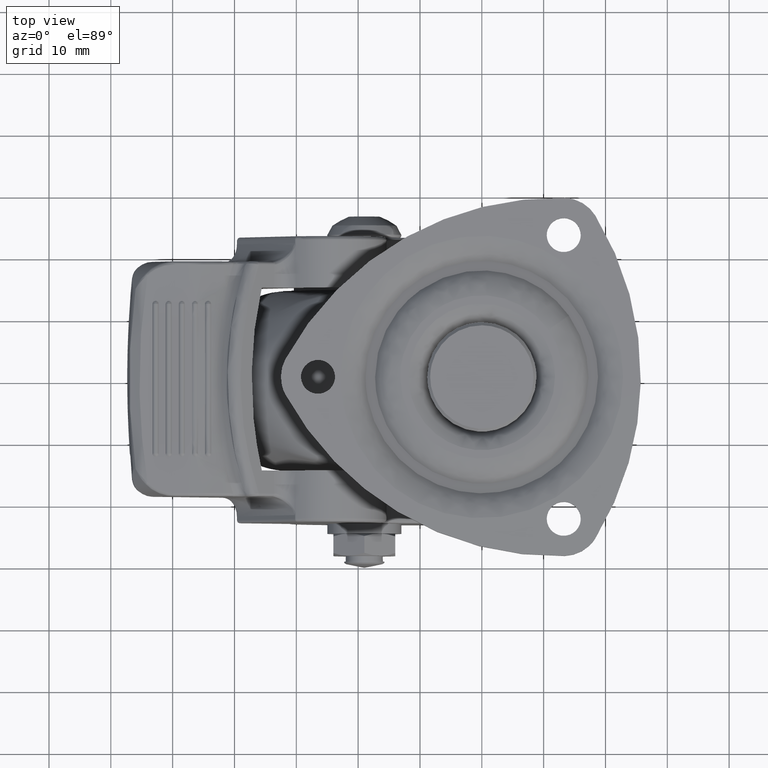
[diagram: clean part render]
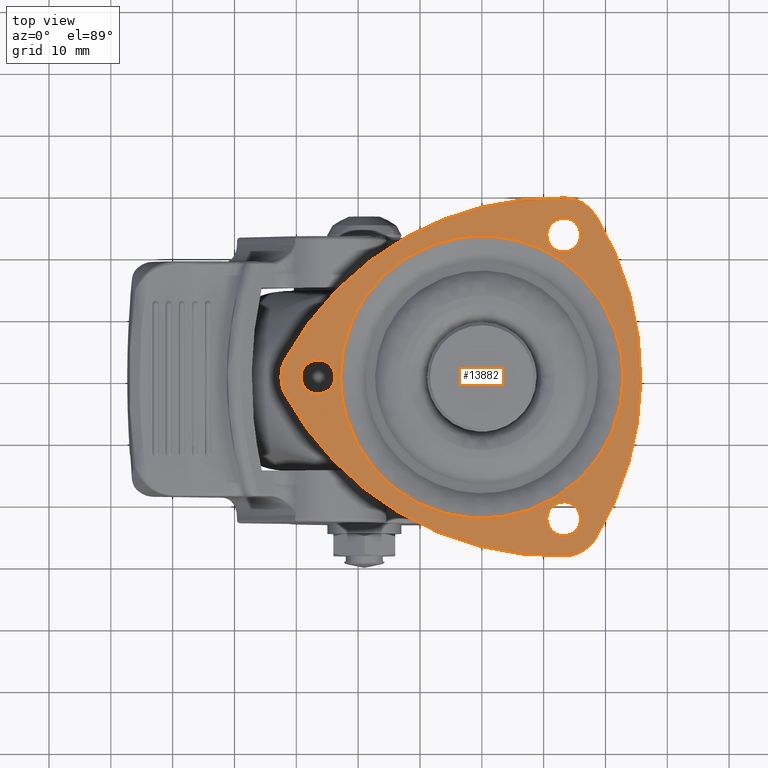
[diagram: same view with one face highlighted and labeled with its STEP entity id]
A machine part, top view. The second image highlights one B-rep face of the part: STEP entity #13882.
In plain terms, the highlighted face is a freeform B-spline surface patch.
Its self-contained STEP definition (entity closure, byte-faithful):
#12094=CARTESIAN_POINT('',(-26.824594145409119,-2.730776197487836,1.277743E-016));
#12095=VERTEX_POINT('',#12094);
#12096=CARTESIAN_POINT('',(-23.750000000000000,0.0,0.0));
#12097=VERTEX_POINT('',#12096);
#12098=CARTESIAN_POINT('',(-26.824594145409126,-2.730776197487836,1.277743E-016));
#12099=CARTESIAN_POINT('',(-26.662866329146873,-2.750000000000000,0.0));
#12100=CARTESIAN_POINT('',(-26.500000000000000,-2.750000000000000,0.0));
#12101=CARTESIAN_POINT('',(-23.750000000000011,-2.750000000000000,0.0));
#12102=CARTESIAN_POINT('',(-23.750000000000000,0.0,0.0));
#12110=(BOUNDED_CURVE()B_SPLINE_CURVE(2,(#12098,#12099,#12100,#12101,#12102),.UNSPECIFIED.,.F.,.U.)B_SPLINE_CURVE_WITH_KNOTS((3,2,3),(0.229562473502891,0.250000000000000,0.500000000000000),.UNSPECIFIED.)CURVE()GEOMETRIC_REPRESENTATION_ITEM()RATIONAL_B_SPLINE_CURVE((0.956026754162888,0.976055948318706,1.0,0.707106781186548,1.0))REPRESENTATION_ITEM(''));
#12111=EDGE_CURVE('',#12095,#12097,#12110,.T.);
#12113=CARTESIAN_POINT('',(-26.332119423274470,2.744870873456494,-9.042073E-014));
#12114=VERTEX_POINT('',#12113);
#12115=CARTESIAN_POINT('',(-23.750000000000000,0.0,0.0));
#12116=CARTESIAN_POINT('',(-23.749999999999996,2.586944428849873,0.0));
#12117=CARTESIAN_POINT('',(-26.332119423274470,2.744870873456494,-9.042073E-014));
#12125=(BOUNDED_CURVE()B_SPLINE_CURVE(2,(#12115,#12116,#12117),.UNSPECIFIED.,.F.,.U.)B_SPLINE_CURVE_WITH_KNOTS((3,3),(0.500000000000000,0.739333144980187),.UNSPECIFIED.)CURVE()GEOMETRIC_REPRESENTATION_ITEM()RATIONAL_B_SPLINE_CURVE((1.0,0.719603779192026,0.976072433316302))REPRESENTATION_ITEM(''));
#12126=EDGE_CURVE('',#12097,#12114,#12125,.T.);
#12193=CARTESIAN_POINT('',(-29.250000000000000,0.0,0.0));
#12194=VERTEX_POINT('',#12193);
#12195=CARTESIAN_POINT('',(-29.250000000000000,0.0,0.0));
#12196=CARTESIAN_POINT('',(-29.250000000000004,-2.442479946180645,0.0));
#12197=CARTESIAN_POINT('',(-26.824594145409126,-2.730776197487836,1.277743E-016));
#12205=(BOUNDED_CURVE()B_SPLINE_CURVE(2,(#12195,#12196,#12197),.UNSPECIFIED.,.F.,.U.)B_SPLINE_CURVE_WITH_KNOTS((3,3),(0.0,0.229562473502891),.UNSPECIFIED.)CURVE()GEOMETRIC_REPRESENTATION_ITEM()RATIONAL_B_SPLINE_CURVE((1.0,0.731050832867842,0.956026754162888))REPRESENTATION_ITEM(''));
#12206=EDGE_CURVE('',#12194,#12095,#12205,.T.);
#12240=CARTESIAN_POINT('',(-26.332119423274467,2.744870873456495,-9.042073E-014));
#12241=CARTESIAN_POINT('',(-26.415981358501895,2.750000000000000,0.0));
#12242=CARTESIAN_POINT('',(-26.500000000000000,2.750000000000000,0.0));
#12243=CARTESIAN_POINT('',(-29.250000000000004,2.750000000000000,0.0));
#12244=CARTESIAN_POINT('',(-29.250000000000000,0.0,0.0));
#12252=(BOUNDED_CURVE()B_SPLINE_CURVE(2,(#12240,#12241,#12242,#12243,#12244),.UNSPECIFIED.,.F.,.U.)B_SPLINE_CURVE_WITH_KNOTS((3,2,3),(0.739333144980186,0.750000000000000,1.0),.UNSPECIFIED.)CURVE()GEOMETRIC_REPRESENTATION_ITEM()RATIONAL_B_SPLINE_CURVE((0.976072433316302,0.987503001994521,1.0,0.707106781186548,1.0))REPRESENTATION_ITEM(''));
#12253=EDGE_CURVE('',#12114,#12194,#12252,.T.);
#12280=CARTESIAN_POINT('',(12.925405854590879,20.218897802512171,1.277743E-016));
#12281=VERTEX_POINT('',#12280);
#12282=CARTESIAN_POINT('',(16.0,22.949674000000002,0.0));
#12283=VERTEX_POINT('',#12282);
#12284=CARTESIAN_POINT('',(12.925405854590881,20.218897802512171,1.277743E-016));
#12285=CARTESIAN_POINT('',(13.087133670853115,20.199673999999998,0.0));
#12286=CARTESIAN_POINT('',(13.250000000000000,20.199674000000002,0.0));
#12287=CARTESIAN_POINT('',(15.999999999999998,20.199674000000009,0.0));
#12288=CARTESIAN_POINT('',(16.0,22.949674000000002,0.0));
#12296=(BOUNDED_CURVE()B_SPLINE_CURVE(2,(#12284,#12285,#12286,#12287,#12288),.UNSPECIFIED.,.F.,.U.)B_SPLINE_CURVE_WITH_KNOTS((3,2,3),(0.229562473502891,0.250000000000000,0.500000000000000),.UNSPECIFIED.)CURVE()GEOMETRIC_REPRESENTATION_ITEM()RATIONAL_B_SPLINE_CURVE((0.956026754162888,0.976055948318706,1.0,0.707106781186548,1.0))REPRESENTATION_ITEM(''));
#12297=EDGE_CURVE('',#12281,#12283,#12296,.T.);
#12299=CARTESIAN_POINT('',(13.417880576725530,25.694544873456490,-8.988296E-014));
#12300=VERTEX_POINT('',#12299);
#12301=CARTESIAN_POINT('',(16.0,22.949674000000002,0.0));
#12302=CARTESIAN_POINT('',(16.000000000000004,25.536618428849859,0.0));
#12303=CARTESIAN_POINT('',(13.417880576725532,25.694544873456490,-8.988296E-014));
#12311=(BOUNDED_CURVE()B_SPLINE_CURVE(2,(#12301,#12302,#12303),.UNSPECIFIED.,.F.,.U.)B_SPLINE_CURVE_WITH_KNOTS((3,3),(0.500000000000000,0.739333144980186),.UNSPECIFIED.)CURVE()GEOMETRIC_REPRESENTATION_ITEM()RATIONAL_B_SPLINE_CURVE((1.0,0.719603779192026,0.976072433316302))REPRESENTATION_ITEM(''));
#12312=EDGE_CURVE('',#12283,#12300,#12311,.T.);
#12379=CARTESIAN_POINT('',(10.500000000000000,22.949674000000002,0.0));
#12380=VERTEX_POINT('',#12379);
#12381=CARTESIAN_POINT('',(10.500000000000000,22.949674000000002,0.0));
#12382=CARTESIAN_POINT('',(10.499999999999998,20.507194053819358,0.0));
#12383=CARTESIAN_POINT('',(12.925405854590881,20.218897802512171,1.277743E-016));
#12391=(BOUNDED_CURVE()B_SPLINE_CURVE(2,(#12381,#12382,#12383),.UNSPECIFIED.,.F.,.U.)B_SPLINE_CURVE_WITH_KNOTS((3,3),(0.0,0.229562473502891),.UNSPECIFIED.)CURVE()GEOMETRIC_REPRESENTATION_ITEM()RATIONAL_B_SPLINE_CURVE((1.0,0.731050832867842,0.956026754162888))REPRESENTATION_ITEM(''));
#12392=EDGE_CURVE('',#12380,#12281,#12391,.T.);
#12426=CARTESIAN_POINT('',(13.417880576725535,25.694544873456497,-8.988296E-014));
#12427=CARTESIAN_POINT('',(13.334018641498107,25.699674000000002,0.0));
#12428=CARTESIAN_POINT('',(13.250000000000000,25.699674000000002,0.0));
#12429=CARTESIAN_POINT('',(10.499999999999998,25.699673999999991,0.0));
#12430=CARTESIAN_POINT('',(10.500000000000000,22.949674000000002,0.0));
#12438=(BOUNDED_CURVE()B_SPLINE_CURVE(2,(#12426,#12427,#12428,#12429,#12430),.UNSPECIFIED.,.F.,.U.)B_SPLINE_CURVE_WITH_KNOTS((3,2,3),(0.739333144980186,0.750000000000000,1.0),.UNSPECIFIED.)CURVE()GEOMETRIC_REPRESENTATION_ITEM()RATIONAL_B_SPLINE_CURVE((0.976072433316301,0.987503001994521,1.0,0.707106781186548,1.0))REPRESENTATION_ITEM(''));
#12439=EDGE_CURVE('',#12300,#12380,#12438,.T.);
#12466=CARTESIAN_POINT('',(12.925405854590879,-25.680449197487938,1.277743E-016));
#12467=VERTEX_POINT('',#12466);
#12468=CARTESIAN_POINT('',(16.0,-22.949673000000100,0.0));
#12469=VERTEX_POINT('',#12468);
#12470=CARTESIAN_POINT('',(12.925405854590883,-25.680449197487935,1.277743E-016));
#12471=CARTESIAN_POINT('',(13.087133670853127,-25.699673000000097,0.0));
#12472=CARTESIAN_POINT('',(13.250000000000000,-25.699673000000100,0.0));
#12473=CARTESIAN_POINT('',(15.999999999999998,-25.699673000000107,0.0));
#12474=CARTESIAN_POINT('',(16.0,-22.949673000000100,0.0));
#12482=(BOUNDED_CURVE()B_SPLINE_CURVE(2,(#12470,#12471,#12472,#12473,#12474),.UNSPECIFIED.,.F.,.U.)B_SPLINE_CURVE_WITH_KNOTS((3,2,3),(0.229562473502891,0.250000000000000,0.500000000000000),.UNSPECIFIED.)CURVE()GEOMETRIC_REPRESENTATION_ITEM()RATIONAL_B_SPLINE_CURVE((0.956026754162888,0.976055948318706,1.0,0.707106781186548,1.0))REPRESENTATION_ITEM(''));
#12483=EDGE_CURVE('',#12467,#12469,#12482,.T.);
#12485=CARTESIAN_POINT('',(13.417880576725530,-20.204802126543608,-8.988296E-014));
#12486=VERTEX_POINT('',#12485);
#12487=CARTESIAN_POINT('',(16.0,-22.949673000000100,0.0));
#12488=CARTESIAN_POINT('',(16.000000000000004,-20.362728571150242,0.0));
#12489=CARTESIAN_POINT('',(13.417880576725532,-20.204802126543612,-8.988296E-014));
#12497=(BOUNDED_CURVE()B_SPLINE_CURVE(2,(#12487,#12488,#12489),.UNSPECIFIED.,.F.,.U.)B_SPLINE_CURVE_WITH_KNOTS((3,3),(0.500000000000000,0.739333144980186),.UNSPECIFIED.)CURVE()GEOMETRIC_REPRESENTATION_ITEM()RATIONAL_B_SPLINE_CURVE((1.0,0.719603779192026,0.976072433316302))REPRESENTATION_ITEM(''));
#12498=EDGE_CURVE('',#12469,#12486,#12497,.T.);
#12565=CARTESIAN_POINT('',(10.500000000000000,-22.949673000000100,0.0));
#12566=VERTEX_POINT('',#12565);
#12567=CARTESIAN_POINT('',(10.500000000000000,-22.949673000000100,0.0));
#12568=CARTESIAN_POINT('',(10.499999999999998,-25.392152946180744,0.0));
#12569=CARTESIAN_POINT('',(12.925405854590881,-25.680449197487942,1.277743E-016));
#12577=(BOUNDED_CURVE()B_SPLINE_CURVE(2,(#12567,#12568,#12569),.UNSPECIFIED.,.F.,.U.)B_SPLINE_CURVE_WITH_KNOTS((3,3),(0.0,0.229562473502891),.UNSPECIFIED.)CURVE()GEOMETRIC_REPRESENTATION_ITEM()RATIONAL_B_SPLINE_CURVE((1.0,0.731050832867842,0.956026754162888))REPRESENTATION_ITEM(''));
#12578=EDGE_CURVE('',#12566,#12467,#12577,.T.);
#12612=CARTESIAN_POINT('',(13.417880576725532,-20.204802126543612,-8.988296E-014));
#12613=CARTESIAN_POINT('',(13.334018641498107,-20.199673000000107,0.0));
#12614=CARTESIAN_POINT('',(13.250000000000000,-20.199673000000100,0.0));
#12615=CARTESIAN_POINT('',(10.499999999999998,-20.199673000000111,0.0));
#12616=CARTESIAN_POINT('',(10.500000000000000,-22.949673000000100,0.0));
#12624=(BOUNDED_CURVE()B_SPLINE_CURVE(2,(#12612,#12613,#12614,#12615,#12616),.UNSPECIFIED.,.F.,.U.)B_SPLINE_CURVE_WITH_KNOTS((3,2,3),(0.739333144980186,0.750000000000000,1.0),.UNSPECIFIED.)CURVE()GEOMETRIC_REPRESENTATION_ITEM()RATIONAL_B_SPLINE_CURVE((0.976072433316302,0.987503001994521,1.0,0.707106781186548,1.0))REPRESENTATION_ITEM(''));
#12625=EDGE_CURVE('',#12486,#12566,#12624,.T.);
#12864=CARTESIAN_POINT('',(-18.653898075415331,13.197922715742010,-1.032646E-015));
#12865=VERTEX_POINT('',#12864);
#12879=CARTESIAN_POINT('',(-22.850669080457550,0.0,0.0));
#12880=VERTEX_POINT('',#12879);
#12881=CARTESIAN_POINT('',(-22.850669080457550,0.0,0.0));
#12882=CARTESIAN_POINT('',(-22.850669080457553,7.266221170201773,0.0));
#12883=CARTESIAN_POINT('',(-18.653898075415334,13.197922715742020,-1.032646E-015));
#12891=(BOUNDED_CURVE()B_SPLINE_CURVE(2,(#12881,#12882,#12883),.UNSPECIFIED.,.F.,.U.)B_SPLINE_CURVE_WITH_KNOTS((3,3),(0.0,0.099340826588436),.UNSPECIFIED.)CURVE()GEOMETRIC_REPRESENTATION_ITEM()RATIONAL_B_SPLINE_CURVE((1.0,0.883614982163696,0.859724235322339))REPRESENTATION_ITEM(''));
#12892=EDGE_CURVE('',#12880,#12865,#12891,.T.);
#12894=CARTESIAN_POINT('',(22.850669080457550,0.0,0.0));
#12895=VERTEX_POINT('',#12894);
#12896=CARTESIAN_POINT('',(22.850669080457550,0.0,0.0));
#12897=CARTESIAN_POINT('',(22.850669080457546,-22.850669080457546,0.0));
#12898=CARTESIAN_POINT('',(0.0,-22.850669080457550,0.0));
#12899=CARTESIAN_POINT('',(-22.850669080457546,-22.850669080457546,0.0));
#12900=CARTESIAN_POINT('',(-22.850669080457550,0.0,0.0));
#12908=(BOUNDED_CURVE()B_SPLINE_CURVE(2,(#12896,#12897,#12898,#12899,#12900),.UNSPECIFIED.,.F.,.U.)B_SPLINE_CURVE_WITH_KNOTS((3,2,3),(0.500000000000000,0.750000000000000,1.0),.UNSPECIFIED.)CURVE()GEOMETRIC_REPRESENTATION_ITEM()RATIONAL_B_SPLINE_CURVE((1.0,0.707106781186547,1.0,0.707106781186547,1.0))REPRESENTATION_ITEM(''));
#12909=EDGE_CURVE('',#12895,#12880,#12908,.T.);
#12911=CARTESIAN_POINT('',(13.197922715742010,18.653898075415331,-1.032646E-015));
#12912=VERTEX_POINT('',#12911);
#12913=CARTESIAN_POINT('',(13.197922715742010,18.653898075415324,-1.032646E-015));
#12914=CARTESIAN_POINT('',(22.850669080457553,11.824430046893259,0.0));
#12915=CARTESIAN_POINT('',(22.850669080457550,0.0,0.0));
#12923=(BOUNDED_CURVE()B_SPLINE_CURVE(2,(#12913,#12914,#12915),.UNSPECIFIED.,.F.,.U.)B_SPLINE_CURVE_WITH_KNOTS((3,3),(0.349340826588436,0.500000000000000),.UNSPECIFIED.)CURVE()GEOMETRIC_REPRESENTATION_ITEM()RATIONAL_B_SPLINE_CURVE((0.859724235322338,0.823491799022851,1.0))REPRESENTATION_ITEM(''));
#12924=EDGE_CURVE('',#12912,#12895,#12923,.T.);
#12975=CARTESIAN_POINT('',(-18.653898075415324,13.197922715742010,-1.032646E-015));
#12976=CARTESIAN_POINT('',(-11.824430046893260,22.850669080457546,0.0));
#12977=CARTESIAN_POINT('',(0.0,22.850669080457550,0.0));
#12978=CARTESIAN_POINT('',(7.266221170201789,22.850669080457546,0.0));
#12979=CARTESIAN_POINT('',(13.197922715742010,18.653898075415324,-1.032646E-015));
#12987=(BOUNDED_CURVE()B_SPLINE_CURVE(2,(#12975,#12976,#12977,#12978,#12979),.UNSPECIFIED.,.F.,.U.)B_SPLINE_CURVE_WITH_KNOTS((3,2,3),(0.099340826588436,0.250000000000000,0.349340826588436),.UNSPECIFIED.)CURVE()GEOMETRIC_REPRESENTATION_ITEM()RATIONAL_B_SPLINE_CURVE((0.859724235322338,0.823491799022851,1.0,0.883614982163696,0.859724235322338))REPRESENTATION_ITEM(''));
#12988=EDGE_CURVE('',#12865,#12912,#12987,.T.);
#13761=CARTESIAN_POINT('',(-35.407548841360907,31.853379514801791,0.0));
#13762=CARTESIAN_POINT('',(28.616739386169861,31.853379514801791,0.0));
#13763=CARTESIAN_POINT('',(-35.407548841360907,-31.853376444295250,0.0));
#13764=CARTESIAN_POINT('',(28.616739386169861,-31.853376444295250,0.0));
#13765=B_SPLINE_SURFACE_WITH_KNOTS('',1,1,((#13761,#13763),(#13762,#13764)),.UNSPECIFIED.,.F.,.F.,.U.,(2,2),(2,2),(0.0,64.024288227530775),(0.0,63.706755959097052),.UNSPECIFIED.);
#13766=CARTESIAN_POINT('',(18.369201818529849,26.079173804453351,0.0));
#13767=VERTEX_POINT('',#13766);
#13768=CARTESIAN_POINT('',(13.400626615101521,28.947782728843048,0.0));
#13769=VERTEX_POINT('',#13768);
#13770=CARTESIAN_POINT('',(18.369201818529849,26.079173804453351,0.0));
#13771=CARTESIAN_POINT('',(16.665671970180849,28.865790037092776,0.0));
#13772=CARTESIAN_POINT('',(13.400626615101521,28.947782728843048,0.0));
#13780=(BOUNDED_CURVE()B_SPLINE_CURVE(2,(#13770,#13771,#13772),.UNSPECIFIED.,.F.,.U.)CURVE()GEOMETRIC_REPRESENTATION_ITEM()QUASI_UNIFORM_CURVE()RATIONAL_B_SPLINE_CURVE((1.0,0.878304632990336,1.0))REPRESENTATION_ITEM(''));
#13781=EDGE_CURVE('',#13767,#13769,#13780,.T.);
#13782=ORIENTED_EDGE('',*,*,#13781,.T.);
#13783=CARTESIAN_POINT('',(-31.769827433630951,2.868608924389780,0.0));
#13784=VERTEX_POINT('',#13783);
#13785=CARTESIAN_POINT('',(13.400626615101530,28.947782728843048,0.0));
#13786=CARTESIAN_POINT('',(-17.156038547551749,29.715131691521837,0.0));
#13787=CARTESIAN_POINT('',(-31.769827433630951,2.868608924389775,0.0));
#13795=(BOUNDED_CURVE()B_SPLINE_CURVE(2,(#13785,#13786,#13787),.UNSPECIFIED.,.F.,.U.)CURVE()GEOMETRIC_REPRESENTATION_ITEM()QUASI_UNIFORM_CURVE()RATIONAL_B_SPLINE_CURVE((1.0,0.853200256370594,1.0))REPRESENTATION_ITEM(''));
#13796=EDGE_CURVE('',#13769,#13784,#13795,.T.);
#13797=ORIENTED_EDGE('',*,*,#13796,.T.);
#13798=CARTESIAN_POINT('',(-31.769828012035550,-2.868608150926780,0.0));
#13799=VERTEX_POINT('',#13798);
#13800=CARTESIAN_POINT('',(-31.769827433630951,2.868608924389780,0.0));
#13801=CARTESIAN_POINT('',(-33.331342783626887,0.000000544157564,0.0));
#13802=CARTESIAN_POINT('',(-31.769828012035550,-2.868608150926780,0.0));
#13810=(BOUNDED_CURVE()B_SPLINE_CURVE(2,(#13800,#13801,#13802),.UNSPECIFIED.,.F.,.U.)CURVE()GEOMETRIC_REPRESENTATION_ITEM()QUASI_UNIFORM_CURVE()RATIONAL_B_SPLINE_CURVE((1.0,0.878304630588961,1.0))REPRESENTATION_ITEM(''));
#13811=EDGE_CURVE('',#13784,#13799,#13810,.T.);
#13812=ORIENTED_EDGE('',*,*,#13811,.T.);
#13813=CARTESIAN_POINT('',(13.400626615101540,-28.947781728843250,0.0));
#13814=VERTEX_POINT('',#13813);
#13815=CARTESIAN_POINT('',(-31.769828012035550,-2.868608150926780,0.0));
#13816=CARTESIAN_POINT('',(-17.156038600813027,-29.715130692859464,0.0));
#13817=CARTESIAN_POINT('',(13.400626615101521,-28.947781728843150,0.0));
#13825=(BOUNDED_CURVE()B_SPLINE_CURVE(2,(#13815,#13816,#13817),.UNSPECIFIED.,.F.,.U.)CURVE()GEOMETRIC_REPRESENTATION_ITEM()QUASI_UNIFORM_CURVE()RATIONAL_B_SPLINE_CURVE((1.0,0.853200255966014,1.0))REPRESENTATION_ITEM(''));
#13826=EDGE_CURVE('',#13799,#13814,#13825,.T.);
#13827=ORIENTED_EDGE('',*,*,#13826,.T.);
#13828=CARTESIAN_POINT('',(18.369201538223550,-26.079173856534499,0.0));
#13829=VERTEX_POINT('',#13828);
#13830=CARTESIAN_POINT('',(13.400626615101540,-28.947781728843250,0.0));
#13831=CARTESIAN_POINT('',(16.665671293823422,-28.865789054077798,0.0));
#13832=CARTESIAN_POINT('',(18.369201538223560,-26.079173856534499,0.0));
#13840=(BOUNDED_CURVE()B_SPLINE_CURVE(2,(#13830,#13831,#13832),.UNSPECIFIED.,.F.,.U.)CURVE()GEOMETRIC_REPRESENTATION_ITEM()QUASI_UNIFORM_CURVE()RATIONAL_B_SPLINE_CURVE((1.0,0.878304674578743,1.0))REPRESENTATION_ITEM(''));
#13841=EDGE_CURVE('',#13814,#13829,#13840,.T.);
#13842=ORIENTED_EDGE('',*,*,#13841,.T.);
#13843=CARTESIAN_POINT('',(18.369201538223550,-26.079173856534499,0.0));
#13844=CARTESIAN_POINT('',(34.312078163401253,-0.000000111719852,0.0));
#13845=CARTESIAN_POINT('',(18.369201818529859,26.079173804453340,0.0));
#13853=(BOUNDED_CURVE()B_SPLINE_CURVE(2,(#13843,#13844,#13845),.UNSPECIFIED.,.F.,.U.)CURVE()GEOMETRIC_REPRESENTATION_ITEM()QUASI_UNIFORM_CURVE()RATIONAL_B_SPLINE_CURVE((1.0,0.853200255376253,1.0))REPRESENTATION_ITEM(''));
#13854=EDGE_CURVE('',#13829,#13767,#13853,.T.);
#13855=ORIENTED_EDGE('',*,*,#13854,.T.);
#13856=EDGE_LOOP('',(#13782,#13797,#13812,#13827,#13842,#13855));
#13857=FACE_OUTER_BOUND('',#13856,.T.);
#13858=ORIENTED_EDGE('',*,*,#12909,.T.);
#13859=ORIENTED_EDGE('',*,*,#12892,.T.);
#13860=ORIENTED_EDGE('',*,*,#12988,.T.);
#13861=ORIENTED_EDGE('',*,*,#12924,.T.);
#13862=EDGE_LOOP('',(#13858,#13859,#13860,#13861));
#13863=FACE_BOUND('',#13862,.T.);
#13864=ORIENTED_EDGE('',*,*,#12498,.F.);
#13865=ORIENTED_EDGE('',*,*,#12483,.F.);
#13866=ORIENTED_EDGE('',*,*,#12578,.F.);
#13867=ORIENTED_EDGE('',*,*,#12625,.F.);
#13868=EDGE_LOOP('',(#13864,#13865,#13866,#13867));
#13869=FACE_BOUND('',#13868,.T.);
#13870=ORIENTED_EDGE('',*,*,#12312,.F.);
#13871=ORIENTED_EDGE('',*,*,#12297,.F.);
#13872=ORIENTED_EDGE('',*,*,#12392,.F.);
#13873=ORIENTED_EDGE('',*,*,#12439,.F.);
#13874=EDGE_LOOP('',(#13870,#13871,#13872,#13873));
#13875=FACE_BOUND('',#13874,.T.);
#13876=ORIENTED_EDGE('',*,*,#12126,.F.);
#13877=ORIENTED_EDGE('',*,*,#12111,.F.);
#13878=ORIENTED_EDGE('',*,*,#12206,.F.);
#13879=ORIENTED_EDGE('',*,*,#12253,.F.);
#13880=EDGE_LOOP('',(#13876,#13877,#13878,#13879));
#13881=FACE_BOUND('',#13880,.T.);
#13882=ADVANCED_FACE('',(#13857,#13863,#13869,#13875,#13881),#13765,.F.);